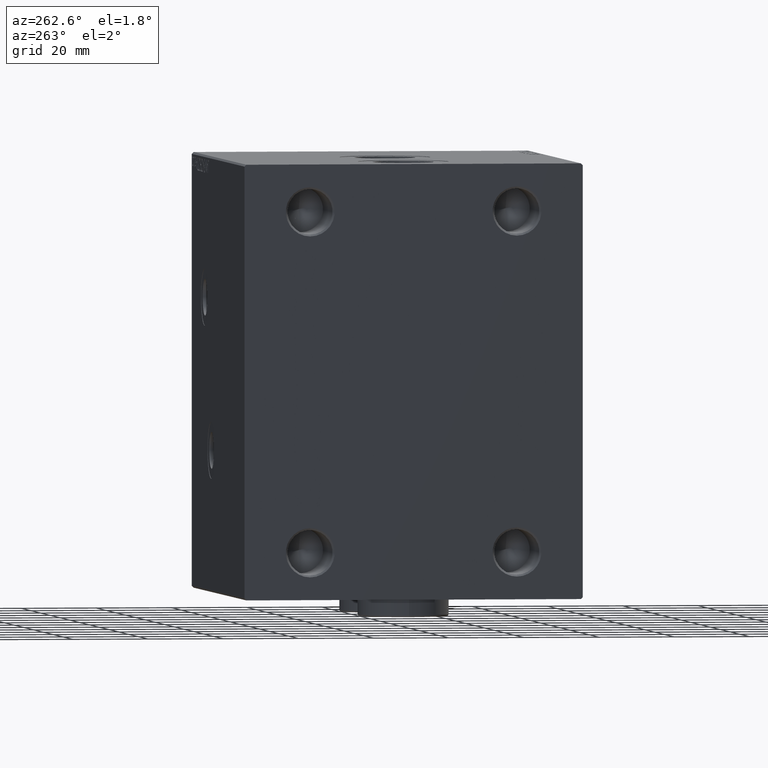
[diagram: clean part render]
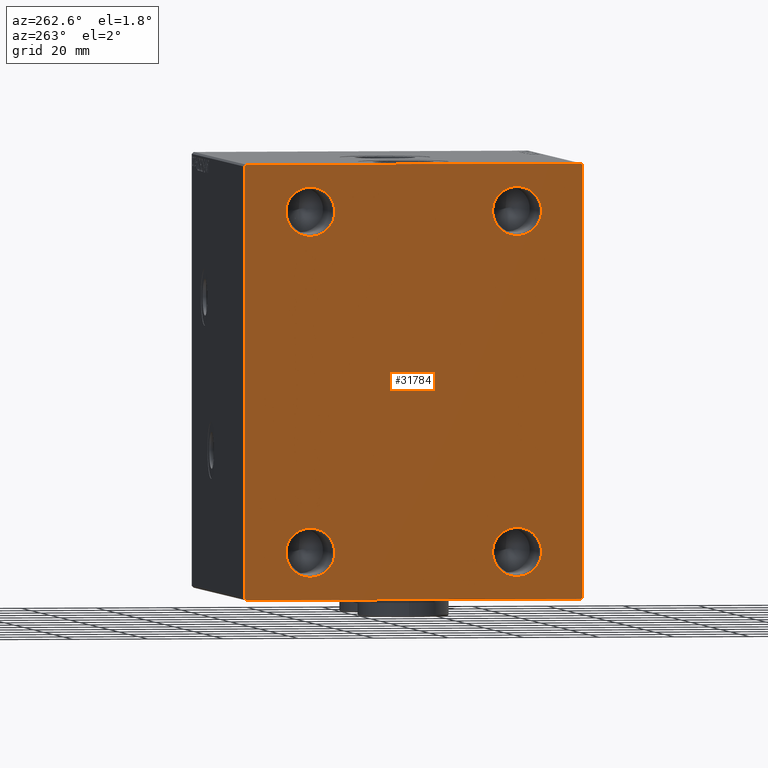
[diagram: same view with one face highlighted and labeled with its STEP entity id]
A machine part, auxiliary view. The second image highlights one B-rep face of the part: STEP entity #31784.
In plain terms, the highlighted planar face has unit normal (-1, -0, 0).
Its self-contained STEP definition (entity closure, byte-faithful):
#742 = LINE ( 'NONE', #36993, #36430 ) ;
#1006 = LINE ( 'NONE', #36112, #14489 ) ;
#1210 = CARTESIAN_POINT ( 'NONE',  ( 108.0000000000000000, -27.50000000000000000, -38.50000000000000000 ) ) ;
#1509 = DIRECTION ( 'NONE',  ( -0.000000000000000000, 0.7071067811865426878, -0.7071067811865524577 ) ) ;
#1568 = EDGE_CURVE ( 'NONE', #16604, #13867, #7770, .T. ) ;
#1895 = VECTOR ( 'NONE', #22911, 1000.000000000000000 ) ;
#1897 = ORIENTED_EDGE ( 'NONE', *, *, #18601, .T. ) ;
#2179 = DIRECTION ( 'NONE',  ( 0.000000000000000000, 0.000000000000000000, -1.000000000000000000 ) ) ;
#2350 = CARTESIAN_POINT ( 'NONE',  ( 108.0000000000000000, 44.99999999999998579, 57.50000000000002132 ) ) ;
#2625 = VERTEX_POINT ( 'NONE', #11196 ) ;
#2880 = VERTEX_POINT ( 'NONE', #46004 ) ;
#3627 = EDGE_CURVE ( 'NONE', #2625, #33371, #13824, .T. ) ;
#3683 = CIRCLE ( 'NONE', #9663, 6.500000000000012434 ) ;
#4132 = LINE ( 'NONE', #10702, #7207 ) ;
#5096 = DIRECTION ( 'NONE',  ( 1.000000000000000000, -0.000000000000000000, -0.000000000000000000 ) ) ;
#5504 = CARTESIAN_POINT ( 'NONE',  ( 108.0000000000000000, 44.99999999999998579, 57.00000000000002132 ) ) ;
#5962 = ORIENTED_EDGE ( 'NONE', *, *, #20588, .F. ) ;
#6915 = VERTEX_POINT ( 'NONE', #19550 ) ;
#7207 = VECTOR ( 'NONE', #11386, 1000.000000000000114 ) ;
#7360 = AXIS2_PLACEMENT_3D ( 'NONE', #30206, #37229, #23397 ) ;
#7389 = EDGE_CURVE ( 'NONE', #13867, #16604, #9441, .T. ) ;
#7512 = VECTOR ( 'NONE', #12345, 1000.000000000000114 ) ;
#7770 = CIRCLE ( 'NONE', #32413, 6.500000000000005329 ) ;
#7780 = ORIENTED_EDGE ( 'NONE', *, *, #44530, .F. ) ;
#7793 = EDGE_CURVE ( 'NONE', #45952, #21614, #4132, .T. ) ;
#8036 = DIRECTION ( 'NONE',  ( 0.000000000000000000, 0.000000000000000000, -1.000000000000000000 ) ) ;
#8296 = LINE ( 'NONE', #39869, #36531 ) ;
#8643 = CARTESIAN_POINT ( 'NONE',  ( 108.0000000000000000, -27.50000000000000000, -51.50000000000001421 ) ) ;
#9063 = CARTESIAN_POINT ( 'NONE',  ( 108.0000000000000000, -51.00000000000000000, 51.00000000000000000 ) ) ;
#9296 = CARTESIAN_POINT ( 'NONE',  ( 108.0000000000000000, -27.50000000000000000, 44.99999999999999289 ) ) ;
#9362 = FACE_BOUND ( 'NONE', #27305, .T. ) ;
#9366 = LINE ( 'NONE', #2350, #1895 ) ;
#9378 = CARTESIAN_POINT ( 'NONE',  ( 108.0000000000000000, -27.50000000000000000, -45.00000000000000711 ) ) ;
#9441 = CIRCLE ( 'NONE', #34870, 6.500000000000005329 ) ;
#9572 = CARTESIAN_POINT ( 'NONE',  ( 108.0000000000000000, 27.50000000000000000, 44.99999999999999289 ) ) ;
#9663 = AXIS2_PLACEMENT_3D ( 'NONE', #9572, #42929, #21395 ) ;
#10702 = CARTESIAN_POINT ( 'NONE',  ( 108.0000000000000000, 51.00000000000001421, 51.00000000000001421 ) ) ;
#10984 = ORIENTED_EDGE ( 'NONE', *, *, #3627, .F. ) ;
#11196 = CARTESIAN_POINT ( 'NONE',  ( 108.0000000000000000, 27.50000000000000000, -38.49999999999999289 ) ) ;
#11386 = DIRECTION ( 'NONE',  ( -0.000000000000000000, -0.7071067811865474617, 0.7071067811865474617 ) ) ;
#12345 = DIRECTION ( 'NONE',  ( 0.000000000000000000, -0.7071067811865474617, -0.7071067811865474617 ) ) ;
#12412 = DIRECTION ( 'NONE',  ( 0.000000000000000000, 0.000000000000000000, -1.000000000000000000 ) ) ;
#12579 = LINE ( 'NONE', #9063, #7512 ) ;
#12690 = AXIS2_PLACEMENT_3D ( 'NONE', #37102, #15349, #26560 ) ;
#12922 = VERTEX_POINT ( 'NONE', #17255 ) ;
#13049 = AXIS2_PLACEMENT_3D ( 'NONE', #9296, #5096, #19805 ) ;
#13587 = ORIENTED_EDGE ( 'NONE', *, *, #7793, .T. ) ;
#13824 = CIRCLE ( 'NONE', #40717, 6.500000000000012434 ) ;
#13867 = VERTEX_POINT ( 'NONE', #1210 ) ;
#14358 = LINE ( 'NONE', #18070, #43297 ) ;
#14489 = VECTOR ( 'NONE', #8036, 1000.000000000000000 ) ;
#14709 = CARTESIAN_POINT ( 'NONE',  ( 108.0000000000000000, 27.50000000000000000, 51.50000000000000711 ) ) ;
#15349 = DIRECTION ( 'NONE',  ( 1.000000000000000000, -0.000000000000000000, -0.000000000000000000 ) ) ;
#15923 = LINE ( 'NONE', #37911, #22372 ) ;
#16241 = EDGE_CURVE ( 'NONE', #12922, #45952, #14358, .T. ) ;
#16604 = VERTEX_POINT ( 'NONE', #8643 ) ;
#16972 = CIRCLE ( 'NONE', #31176, 6.500000000000012434 ) ;
#17197 = CIRCLE ( 'NONE', #12690, 6.500000000000012434 ) ;
#17255 = CARTESIAN_POINT ( 'NONE',  ( 108.0000000000000000, 45.00000000000000711, -56.99999999999999289 ) ) ;
#17382 = ORIENTED_EDGE ( 'NONE', *, *, #22508, .F. ) ;
#18070 = CARTESIAN_POINT ( 'NONE',  ( 108.0000000000000000, 45.00000000000000711, -57.49999999999999289 ) ) ;
#18601 = EDGE_CURVE ( 'NONE', #43252, #21988, #742, .T. ) ;
#19550 = CARTESIAN_POINT ( 'NONE',  ( 108.0000000000000000, -45.00000000000000000, -57.00000000000002132 ) ) ;
#19805 = DIRECTION ( 'NONE',  ( 0.000000000000000000, 0.000000000000000000, -1.000000000000000000 ) ) ;
#20588 = EDGE_CURVE ( 'NONE', #33371, #2625, #16972, .T. ) ;
#21118 = DIRECTION ( 'NONE',  ( 0.000000000000000000, -1.810146235801885814E-16, 1.000000000000000000 ) ) ;
#21395 = DIRECTION ( 'NONE',  ( 0.000000000000000000, 0.000000000000000000, -1.000000000000000000 ) ) ;
#21576 = DIRECTION ( 'NONE',  ( 0.000000000000000000, 0.000000000000000000, -1.000000000000000000 ) ) ;
#21614 = VERTEX_POINT ( 'NONE', #26157 ) ;
#21988 = VERTEX_POINT ( 'NONE', #27035 ) ;
#22289 = EDGE_LOOP ( 'NONE', ( #10984, #5962 ) ) ;
#22372 = VECTOR ( 'NONE', #37216, 999.9999999999998863 ) ;
#22508 = EDGE_CURVE ( 'NONE', #24916, #2880, #30486, .T. ) ;
#22911 = DIRECTION ( 'NONE',  ( 0.000000000000000000, -1.000000000000000000, -3.083952846180991267E-16 ) ) ;
#23366 = PLANE ( 'NONE',  #24723 ) ;
#23397 = DIRECTION ( 'NONE',  ( 0.000000000000000000, 0.000000000000000000, -1.000000000000000000 ) ) ;
#23600 = DIRECTION ( 'NONE',  ( 1.000000000000000000, 0.000000000000000000, 0.000000000000000000 ) ) ;
#23908 = DIRECTION ( 'NONE',  ( 1.000000000000000000, -0.000000000000000000, -0.000000000000000000 ) ) ;
#23998 = CARTESIAN_POINT ( 'NONE',  ( 108.0000000000000000, -44.49999999999997158, 57.49999999999999289 ) ) ;
#24123 = EDGE_LOOP ( 'NONE', ( #35327, #37049, #36597, #35793, #1897, #29110, #33744, #13587 ) ) ;
#24296 = VERTEX_POINT ( 'NONE', #31434 ) ;
#24723 = AXIS2_PLACEMENT_3D ( 'NONE', #30641, #23600, #37655 ) ;
#24834 = EDGE_CURVE ( 'NONE', #24296, #45497, #3683, .T. ) ;
#24888 = EDGE_CURVE ( 'NONE', #6915, #43252, #8296, .T. ) ;
#24916 = VERTEX_POINT ( 'NONE', #44300 ) ;
#25755 = DIRECTION ( 'NONE',  ( 0.000000000000000000, 1.000000000000000000, 7.709882115452476934E-17 ) ) ;
#26087 = VERTEX_POINT ( 'NONE', #23998 ) ;
#26157 = CARTESIAN_POINT ( 'NONE',  ( 108.0000000000000000, 44.50000000000001421, 57.50000000000002132 ) ) ;
#26424 = FACE_OUTER_BOUND ( 'NONE', #24123, .T. ) ;
#26560 = DIRECTION ( 'NONE',  ( 0.000000000000000000, 0.000000000000000000, -1.000000000000000000 ) ) ;
#27035 = CARTESIAN_POINT ( 'NONE',  ( 108.0000000000000000, 44.49999999999997158, -57.49999999999999289 ) ) ;
#27305 = EDGE_LOOP ( 'NONE', ( #32509, #42244 ) ) ;
#27332 = EDGE_CURVE ( 'NONE', #21988, #12922, #15923, .T. ) ;
#27657 = EDGE_CURVE ( 'NONE', #45497, #24296, #17197, .T. ) ;
#28868 = EDGE_LOOP ( 'NONE', ( #43168, #36390 ) ) ;
#29011 = EDGE_LOOP ( 'NONE', ( #17382, #7780 ) ) ;
#29073 = DIRECTION ( 'NONE',  ( 1.000000000000000000, -0.000000000000000000, -0.000000000000000000 ) ) ;
#29110 = ORIENTED_EDGE ( 'NONE', *, *, #27332, .T. ) ;
#30183 = CARTESIAN_POINT ( 'NONE',  ( 108.0000000000000000, 27.50000000000000000, -45.00000000000000711 ) ) ;
#30206 = CARTESIAN_POINT ( 'NONE',  ( 108.0000000000000000, -27.50000000000000000, 44.99999999999999289 ) ) ;
#30486 = CIRCLE ( 'NONE', #7360, 6.500000000000005329 ) ;
#30641 = CARTESIAN_POINT ( 'NONE',  ( 108.0000000000000000, 0.000000000000000000, 0.000000000000000000 ) ) ;
#30701 = VERTEX_POINT ( 'NONE', #44030 ) ;
#31176 = AXIS2_PLACEMENT_3D ( 'NONE', #39823, #29073, #21576 ) ;
#31392 = CARTESIAN_POINT ( 'NONE',  ( 108.0000000000000000, -44.50000000000002842, -57.50000000000000000 ) ) ;
#31434 = CARTESIAN_POINT ( 'NONE',  ( 108.0000000000000000, 27.50000000000000000, 38.49999999999997868 ) ) ;
#31784 = ADVANCED_FACE ( 'NONE', ( #45141, #44673, #9362, #41166, #26424 ), #23366, .T. ) ;
#32413 = AXIS2_PLACEMENT_3D ( 'NONE', #9378, #33934, #44689 ) ;
#32416 = EDGE_CURVE ( 'NONE', #26087, #30701, #12579, .T. ) ;
#32509 = ORIENTED_EDGE ( 'NONE', *, *, #7389, .F. ) ;
#33210 = CIRCLE ( 'NONE', #13049, 6.500000000000005329 ) ;
#33371 = VERTEX_POINT ( 'NONE', #45613 ) ;
#33744 = ORIENTED_EDGE ( 'NONE', *, *, #16241, .T. ) ;
#33934 = DIRECTION ( 'NONE',  ( 1.000000000000000000, -0.000000000000000000, -0.000000000000000000 ) ) ;
#34870 = AXIS2_PLACEMENT_3D ( 'NONE', #37724, #23908, #2179 ) ;
#35327 = ORIENTED_EDGE ( 'NONE', *, *, #45243, .T. ) ;
#35793 = ORIENTED_EDGE ( 'NONE', *, *, #24888, .T. ) ;
#36112 = CARTESIAN_POINT ( 'NONE',  ( 108.0000000000000000, -45.00000000000000000, 57.49999999999999289 ) ) ;
#36390 = ORIENTED_EDGE ( 'NONE', *, *, #24834, .F. ) ;
#36430 = VECTOR ( 'NONE', #25755, 1000.000000000000000 ) ;
#36531 = VECTOR ( 'NONE', #1509, 1000.000000000000000 ) ;
#36597 = ORIENTED_EDGE ( 'NONE', *, *, #42443, .T. ) ;
#36993 = CARTESIAN_POINT ( 'NONE',  ( 108.0000000000000000, -45.00000000000000000, -57.50000000000000000 ) ) ;
#37049 = ORIENTED_EDGE ( 'NONE', *, *, #32416, .T. ) ;
#37102 = CARTESIAN_POINT ( 'NONE',  ( 108.0000000000000000, 27.50000000000000000, 44.99999999999999289 ) ) ;
#37216 = DIRECTION ( 'NONE',  ( -0.000000000000000000, 0.7071067811865525687, 0.7071067811865425767 ) ) ;
#37229 = DIRECTION ( 'NONE',  ( 1.000000000000000000, -0.000000000000000000, -0.000000000000000000 ) ) ;
#37655 = DIRECTION ( 'NONE',  ( 0.000000000000000000, 0.000000000000000000, -1.000000000000000000 ) ) ;
#37724 = CARTESIAN_POINT ( 'NONE',  ( 108.0000000000000000, -27.50000000000000000, -45.00000000000000711 ) ) ;
#37911 = CARTESIAN_POINT ( 'NONE',  ( 108.0000000000000000, 50.99999999999969447, -51.00000000000039790 ) ) ;
#39823 = CARTESIAN_POINT ( 'NONE',  ( 108.0000000000000000, 27.50000000000000000, -45.00000000000000711 ) ) ;
#39869 = CARTESIAN_POINT ( 'NONE',  ( 108.0000000000000000, -51.00000000000031974, -50.99999999999961631 ) ) ;
#40717 = AXIS2_PLACEMENT_3D ( 'NONE', #30183, #44445, #12412 ) ;
#41166 = FACE_BOUND ( 'NONE', #22289, .T. ) ;
#42244 = ORIENTED_EDGE ( 'NONE', *, *, #1568, .F. ) ;
#42443 = EDGE_CURVE ( 'NONE', #30701, #6915, #1006, .T. ) ;
#42929 = DIRECTION ( 'NONE',  ( 1.000000000000000000, -0.000000000000000000, -0.000000000000000000 ) ) ;
#43168 = ORIENTED_EDGE ( 'NONE', *, *, #27657, .F. ) ;
#43252 = VERTEX_POINT ( 'NONE', #31392 ) ;
#43297 = VECTOR ( 'NONE', #21118, 1000.000000000000000 ) ;
#44030 = CARTESIAN_POINT ( 'NONE',  ( 108.0000000000000000, -45.00000000000000000, 56.99999999999999289 ) ) ;
#44300 = CARTESIAN_POINT ( 'NONE',  ( 108.0000000000000000, -27.50000000000000000, 51.50000000000000000 ) ) ;
#44445 = DIRECTION ( 'NONE',  ( 1.000000000000000000, -0.000000000000000000, -0.000000000000000000 ) ) ;
#44530 = EDGE_CURVE ( 'NONE', #2880, #24916, #33210, .T. ) ;
#44673 = FACE_BOUND ( 'NONE', #29011, .T. ) ;
#44689 = DIRECTION ( 'NONE',  ( 0.000000000000000000, 0.000000000000000000, -1.000000000000000000 ) ) ;
#45141 = FACE_BOUND ( 'NONE', #28868, .T. ) ;
#45243 = EDGE_CURVE ( 'NONE', #21614, #26087, #9366, .T. ) ;
#45497 = VERTEX_POINT ( 'NONE', #14709 ) ;
#45613 = CARTESIAN_POINT ( 'NONE',  ( 108.0000000000000000, 27.50000000000000000, -51.50000000000002132 ) ) ;
#45952 = VERTEX_POINT ( 'NONE', #5504 ) ;
#46004 = CARTESIAN_POINT ( 'NONE',  ( 108.0000000000000000, -27.50000000000000000, 38.49999999999998579 ) ) ;